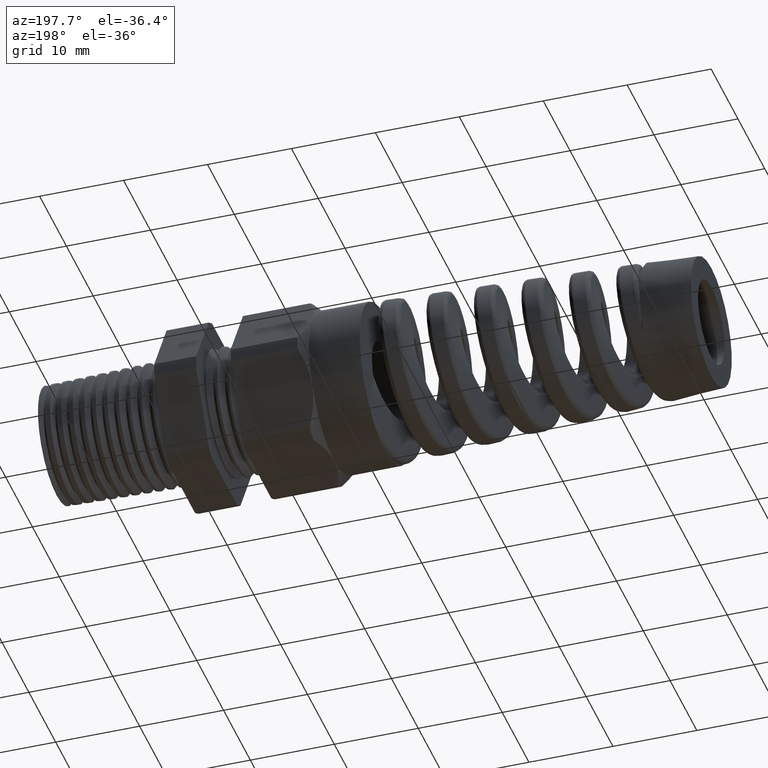
[diagram: clean part render]
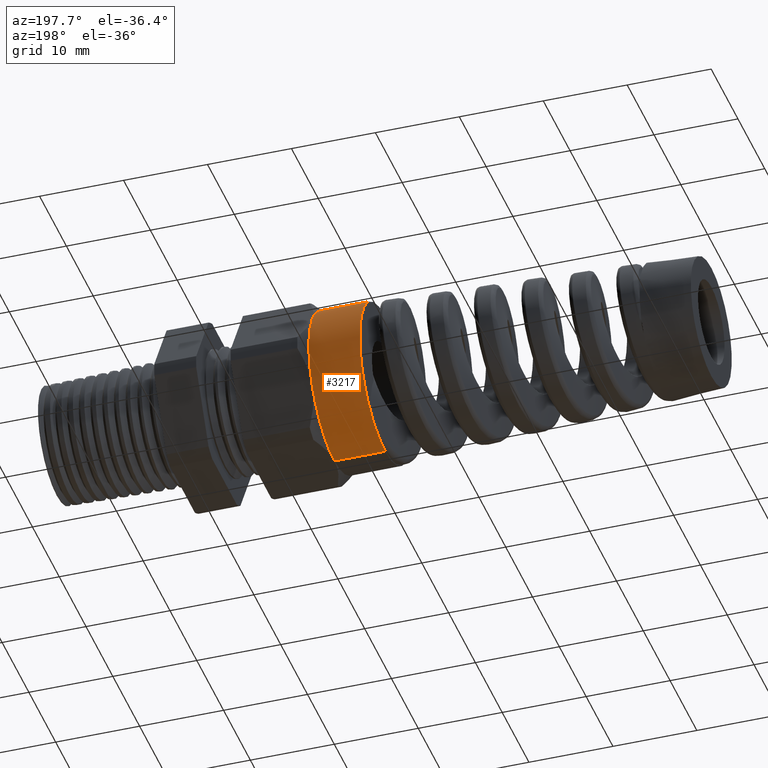
[diagram: same view with one face highlighted and labeled with its STEP entity id]
A machine part, auxiliary view. The second image highlights one B-rep face of the part: STEP entity #3217.
In plain terms, the highlighted cylindrical surface (partial cylindrical patch) has radius 9.525 mm, axis along (1, 0, 0).
Its self-contained STEP definition (entity closure, byte-faithful):
#1147 = CARTESIAN_POINT ( 'NONE',  ( -1.260843166534453300, 4.592425496802574200E-017, 0.3749999999999998300 ) ) ;
#1148 = CARTESIAN_POINT ( 'NONE',  ( -1.260843166534453300, 0.0000000000000000000, -0.3749999999999998300 ) ) ;
#2587 = DIRECTION ( 'NONE',  ( 0.0000000000000000000, 0.0000000000000000000, -1.000000000000000000 ) ) ;
#2588 = DIRECTION ( 'NONE',  ( 1.000000000000000000, 0.0000000000000000000, 0.0000000000000000000 ) ) ;
#2589 = CARTESIAN_POINT ( 'NONE',  ( -1.022519685039369900, 0.0000000000000000000, 0.0000000000000000000 ) ) ;
#2590 = AXIS2_PLACEMENT_3D ( 'NONE', #2589, #2588, #2587 ) ;
#2591 = CIRCLE ( 'NONE', #2590, 0.3750000000000001100 ) ;
#3213 = ORIENTED_EDGE ( 'NONE', *, *, #3216, .F. ) ;
#3214 = EDGE_LOOP ( 'NONE', ( #3213, #9850, #8880, #3245, #3226, #3223 ) ) ;
#3216 = EDGE_CURVE ( 'NONE', #9461, #9426, #5388, .T. ) ;
#3217 = ADVANCED_FACE ( 'NONE', ( #5383 ), #5382, .T. ) ;
#3223 = ORIENTED_EDGE ( 'NONE', *, *, #3224, .F. ) ;
#3224 = EDGE_CURVE ( 'NONE', #9426, #3229, #5369, .T. ) ;
#3226 = ORIENTED_EDGE ( 'NONE', *, *, #3228, .F. ) ;
#3227 = VERTEX_POINT ( 'NONE', #5422 ) ;
#3228 = EDGE_CURVE ( 'NONE', #3229, #3227, #5421, .T. ) ;
#3229 = VERTEX_POINT ( 'NONE', #5416 ) ;
#3230 = EDGE_CURVE ( 'NONE', #3227, #3247, #5415, .T. ) ;
#3245 = ORIENTED_EDGE ( 'NONE', *, *, #3230, .F. ) ;
#3247 = VERTEX_POINT ( 'NONE', #5399 ) ;
#5367 = VECTOR ( 'NONE', #5429, 39.37007874015748100 ) ;
#5368 = CARTESIAN_POINT ( 'NONE',  ( 0.0000000000000000000, 0.0000000000000000000, -0.3750000000000001100 ) ) ;
#5369 = LINE ( 'NONE', #5368, #5367 ) ;
#5378 = DIRECTION ( 'NONE',  ( 0.0000000000000000000, 0.0000000000000000000, -1.000000000000000000 ) ) ;
#5379 = DIRECTION ( 'NONE',  ( 1.000000000000000000, 0.0000000000000000000, 0.0000000000000000000 ) ) ;
#5380 = CARTESIAN_POINT ( 'NONE',  ( 0.0000000000000000000, 0.0000000000000000000, 0.0000000000000000000 ) ) ;
#5381 = AXIS2_PLACEMENT_3D ( 'NONE', #5380, #5379, #5378 ) ;
#5382 = CYLINDRICAL_SURFACE ( 'NONE', #5381, 0.3750000000000001100 ) ;
#5383 = FACE_OUTER_BOUND ( 'NONE', #3214, .T. ) ;
#5384 = DIRECTION ( 'NONE',  ( 0.0000000000000000000, 0.0000000000000000000, 1.000000000000000000 ) ) ;
#5385 = DIRECTION ( 'NONE',  ( -1.000000000000000000, 0.0000000000000000000, 0.0000000000000000000 ) ) ;
#5386 = CARTESIAN_POINT ( 'NONE',  ( -1.260843166534453300, 0.0000000000000000000, 0.0000000000000000000 ) ) ;
#5387 = AXIS2_PLACEMENT_3D ( 'NONE', #5386, #5385, #5384 ) ;
#5388 = CIRCLE ( 'NONE', #5387, 0.3749999999999998300 ) ;
#5399 = CARTESIAN_POINT ( 'NONE',  ( -1.022519685039369900, 0.3247595264191647200, 0.1875000000000002500 ) ) ;
#5411 = DIRECTION ( 'NONE',  ( 0.0000000000000000000, 0.0000000000000000000, -1.000000000000000000 ) ) ;
#5412 = DIRECTION ( 'NONE',  ( 1.000000000000000000, 0.0000000000000000000, 0.0000000000000000000 ) ) ;
#5413 = CARTESIAN_POINT ( 'NONE',  ( -1.022519685039369900, 0.0000000000000000000, 0.0000000000000000000 ) ) ;
#5414 = AXIS2_PLACEMENT_3D ( 'NONE', #5413, #5412, #5411 ) ;
#5415 = CIRCLE ( 'NONE', #5414, 0.3750000000000001100 ) ;
#5416 = CARTESIAN_POINT ( 'NONE',  ( -1.022519685039369900, 0.0000000000000000000, -0.3749999999999999400 ) ) ;
#5417 = DIRECTION ( 'NONE',  ( 0.0000000000000000000, 0.0000000000000000000, -1.000000000000000000 ) ) ;
#5418 = DIRECTION ( 'NONE',  ( 1.000000000000000000, 0.0000000000000000000, 0.0000000000000000000 ) ) ;
#5419 = CARTESIAN_POINT ( 'NONE',  ( -1.022519685039369900, 0.0000000000000000000, 0.0000000000000000000 ) ) ;
#5420 = AXIS2_PLACEMENT_3D ( 'NONE', #5419, #5418, #5417 ) ;
#5421 = CIRCLE ( 'NONE', #5420, 0.3750000000000001100 ) ;
#5422 = CARTESIAN_POINT ( 'NONE',  ( -1.022519685039369900, 0.3247595264191648300, -0.1875000000000001100 ) ) ;
#5429 = DIRECTION ( 'NONE',  ( 1.000000000000000000, 0.0000000000000000000, 0.0000000000000000000 ) ) ;
#8880 = ORIENTED_EDGE ( 'NONE', *, *, #11621, .F. ) ;
#9079 = VERTEX_POINT ( 'NONE', #10221 ) ;
#9426 = VERTEX_POINT ( 'NONE', #1148 ) ;
#9461 = VERTEX_POINT ( 'NONE', #1147 ) ;
#9701 = EDGE_CURVE ( 'NONE', #9461, #9079, #10581, .T. ) ;
#9850 = ORIENTED_EDGE ( 'NONE', *, *, #9701, .T. ) ;
#10221 = CARTESIAN_POINT ( 'NONE',  ( -1.022519685039369900, 0.0000000000000000000, 0.3749999999999999400 ) ) ;
#10578 = DIRECTION ( 'NONE',  ( 1.000000000000000000, 0.0000000000000000000, 0.0000000000000000000 ) ) ;
#10579 = VECTOR ( 'NONE', #10578, 39.37007874015748100 ) ;
#10580 = CARTESIAN_POINT ( 'NONE',  ( 0.0000000000000000000, 4.592425496802576100E-017, 0.3750000000000001100 ) ) ;
#10581 = LINE ( 'NONE', #10580, #10579 ) ;
#11621 = EDGE_CURVE ( 'NONE', #3247, #9079, #2591, .T. ) ;